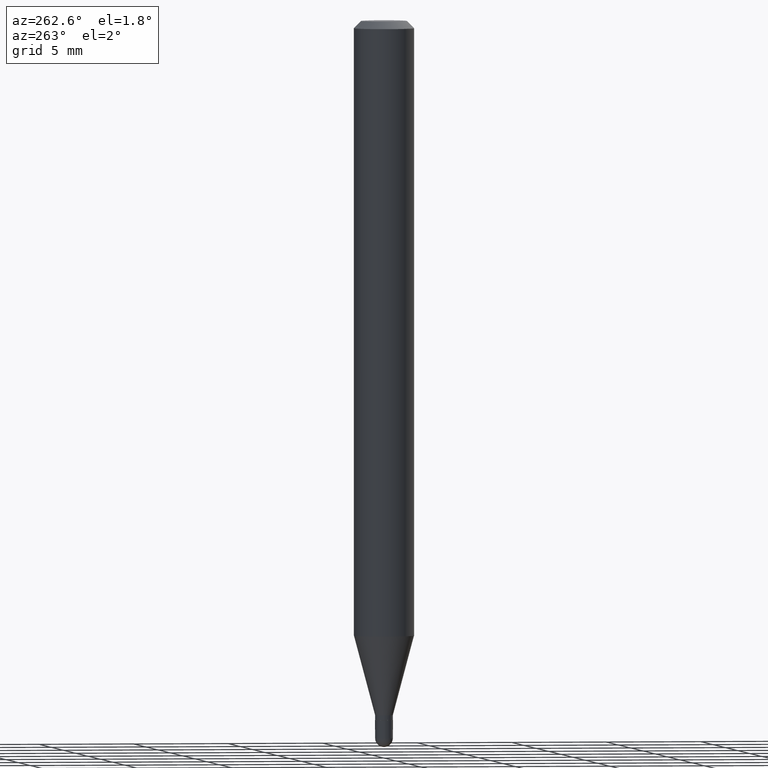
[diagram: clean part render]
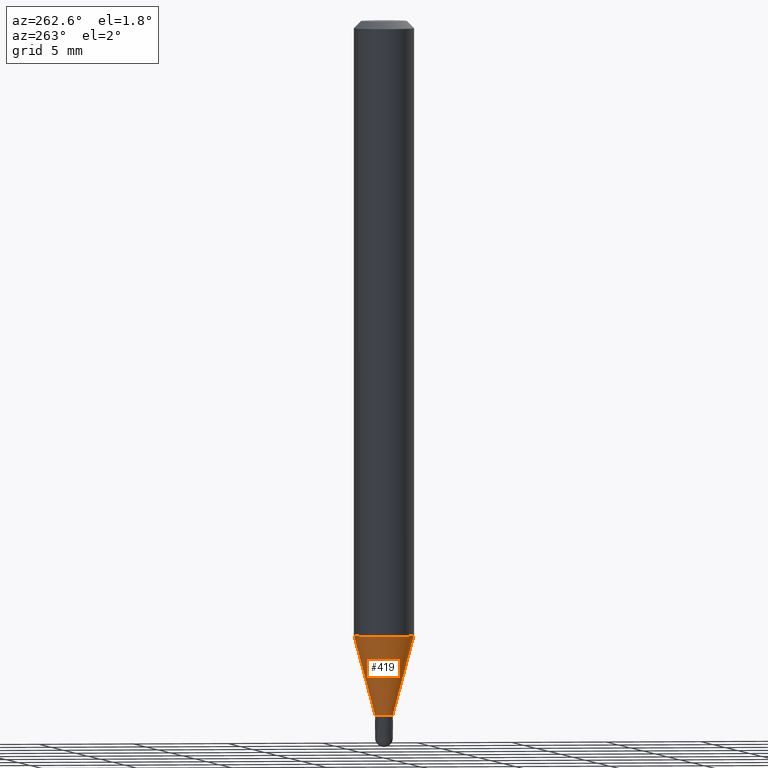
[diagram: same view with one face highlighted and labeled with its STEP entity id]
A machine part, auxiliary view. The second image highlights one B-rep face of the part: STEP entity #419.
In plain terms, the highlighted conical surface has half-angle 15 deg.
Its self-contained STEP definition (entity closure, byte-faithful):
#22 = ORIENTED_EDGE ( 'NONE', *, *, #254, .F. ) ;
#37 = DIRECTION ( 'NONE',  ( -6.982962677686265922E-15, -1.000000000000000000, 0.000000000000000000 ) ) ;
#46 = AXIS2_PLACEMENT_3D ( 'NONE', #71, #273, #350 ) ;
#48 = CARTESIAN_POINT ( 'NONE',  ( -1.291848095371603260E-16, -0.01850000000000492917, -1.433999999999999719 ) ) ;
#69 = VECTOR ( 'NONE', #326, 39.37007874015749564 ) ;
#71 = CARTESIAN_POINT ( 'NONE',  ( 3.105213739144405551E-29, -4.433472356918211735E-15, -1.269789764466969340 ) ) ;
#94 = CARTESIAN_POINT ( 'NONE',  ( 4.440892098500933817E-16, 0.06249999999999555217, -1.269789764466969562 ) ) ;
#97 = CARTESIAN_POINT ( 'NONE',  ( 1.314504061156530405E-16, 0.01849999999999491634, -1.433999999999999719 ) ) ;
#129 = CARTESIAN_POINT ( 'NONE',  ( -4.364351673553607559E-16, -0.06250000000000444089, -1.269789764466969118 ) ) ;
#142 = VECTOR ( 'NONE', #370, 39.37007874015748143 ) ;
#143 = ORIENTED_EDGE ( 'NONE', *, *, #347, .F. ) ;
#146 = VERTEX_POINT ( 'NONE', #490 ) ;
#148 = EDGE_CURVE ( 'NONE', #240, #274, #331, .T. ) ;
#163 = CARTESIAN_POINT ( 'NONE',  ( 3.506782482060956982E-29, -5.006812574591430922E-15, -1.433999999999999719 ) ) ;
#177 = CARTESIAN_POINT ( 'NONE',  ( -1.291848095371603260E-16, -0.01850000000000492917, -1.433999999999999719 ) ) ;
#190 = EDGE_LOOP ( 'NONE', ( #22, #421, #352, #143 ) ) ;
#194 = EDGE_CURVE ( 'NONE', #146, #240, #367, .T. ) ;
#211 = LINE ( 'NONE', #97, #142 ) ;
#240 = VERTEX_POINT ( 'NONE', #48 ) ;
#254 = EDGE_CURVE ( 'NONE', #146, #492, #211, .T. ) ;
#273 = DIRECTION ( 'NONE',  ( -2.445455008410709746E-29, 3.491501098041445170E-15, 1.000000000000000000 ) ) ;
#274 = VERTEX_POINT ( 'NONE', #129 ) ;
#314 = CONICAL_SURFACE ( 'NONE', #495, 0.01849999999999992276, 0.2617993877991501850 ) ;
#326 = DIRECTION ( 'NONE',  ( -1.807323732225329350E-15, -0.2588190451025180194, 0.9659258262890689783 ) ) ;
#327 = DIRECTION ( 'NONE',  ( -6.982962677686265922E-15, -1.000000000000000000, 0.000000000000000000 ) ) ;
#331 = LINE ( 'NONE', #177, #69 ) ;
#334 = AXIS2_PLACEMENT_3D ( 'NONE', #163, #478, #327 ) ;
#347 = EDGE_CURVE ( 'NONE', #492, #274, #414, .T. ) ;
#350 = DIRECTION ( 'NONE',  ( -6.982962677686265922E-15, -1.000000000000000000, 4.370956789862821150E-15 ) ) ;
#352 = ORIENTED_EDGE ( 'NONE', *, *, #148, .T. ) ;
#355 = CARTESIAN_POINT ( 'NONE',  ( 3.506782482060956982E-29, -5.006812574591430922E-15, -1.433999999999999719 ) ) ;
#367 = CIRCLE ( 'NONE', #334, 0.01849999999999992276 ) ;
#370 = DIRECTION ( 'NONE',  ( 1.839019923739599526E-15, 0.2588190451025248473, 0.9659258262890670910 ) ) ;
#414 = CIRCLE ( 'NONE', #46, 0.06250000000000000000 ) ;
#419 = ADVANCED_FACE ( 'NONE', ( #426 ), #314, .T. ) ;
#421 = ORIENTED_EDGE ( 'NONE', *, *, #194, .T. ) ;
#426 = FACE_OUTER_BOUND ( 'NONE', #190, .T. ) ;
#473 = DIRECTION ( 'NONE',  ( -2.445455008410709746E-29, 3.491501098041445170E-15, 1.000000000000000000 ) ) ;
#478 = DIRECTION ( 'NONE',  ( -2.445455008410709746E-29, 3.491501098041445170E-15, 1.000000000000000000 ) ) ;
#490 = CARTESIAN_POINT ( 'NONE',  ( 2.877698079828734700E-16, 0.01849999999999491634, -1.433999999999999719 ) ) ;
#492 = VERTEX_POINT ( 'NONE', #94 ) ;
#495 = AXIS2_PLACEMENT_3D ( 'NONE', #355, #473, #37 ) ;